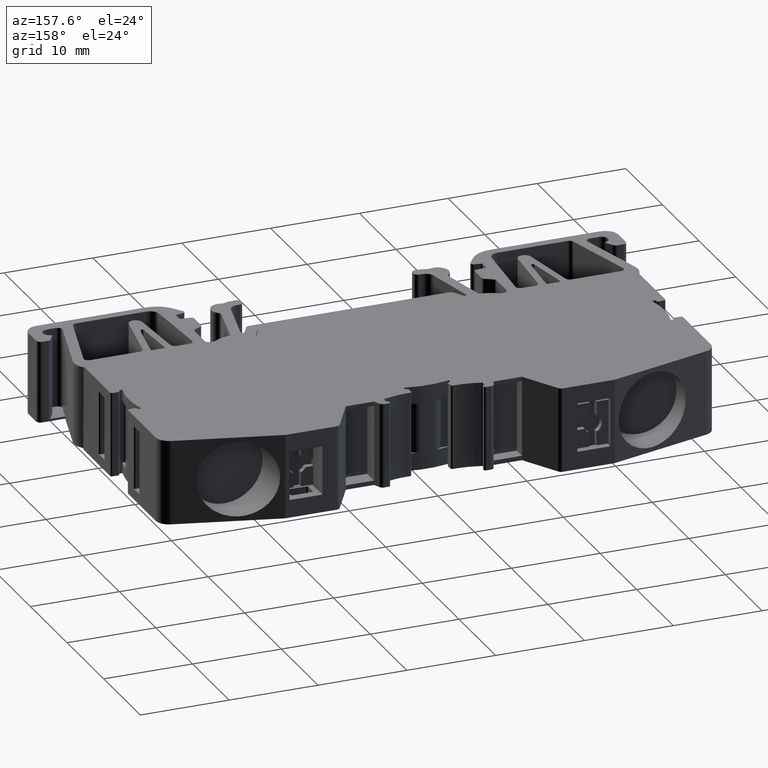
[diagram: clean part render]
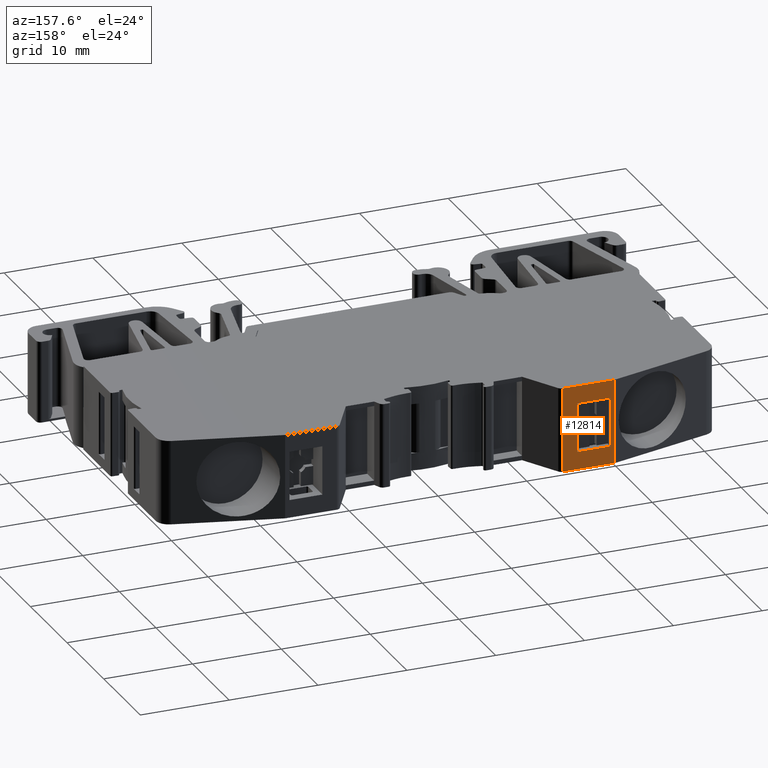
[diagram: same view with one face highlighted and labeled with its STEP entity id]
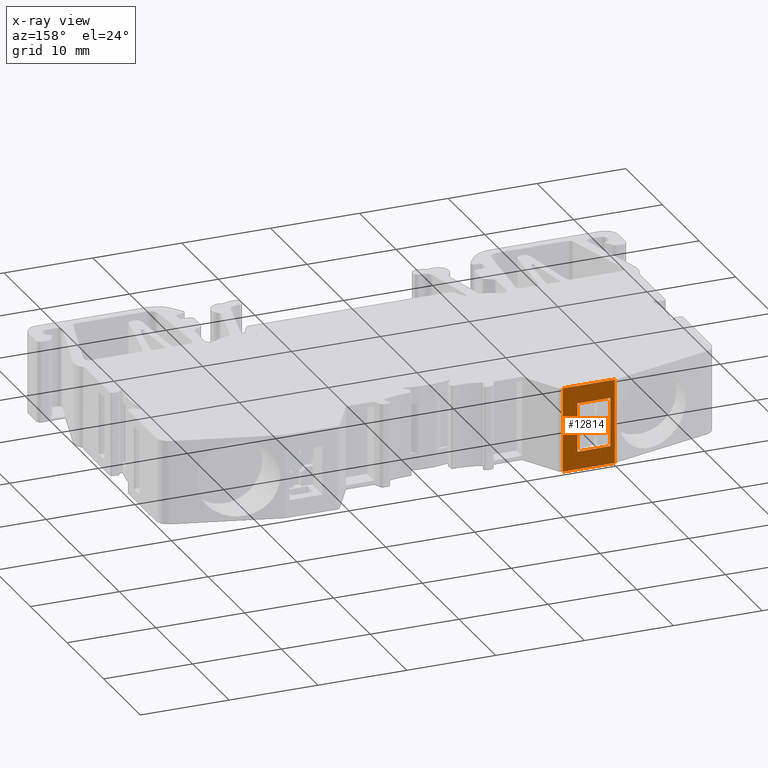
[diagram: x-ray of the same camera — body ghosted, the highlighted face saturated]
A machine part, auxiliary view. The second image highlights one B-rep face of the part: STEP entity #12814.
The next image is the same camera in x-ray: the body ghosted, the highlighted face saturated — about 0% of this face is hidden behind the body in this view.
In plain terms, the highlighted planar face has unit normal (0, 1, -0).
Its self-contained STEP definition (entity closure, byte-faithful):
#579 = CARTESIAN_POINT ( 'NONE',  ( 166.5904565199155300, 31.61042765594739700, 3.979364252333159600 ) ) ;
#586 = FACE_OUTER_BOUND ( 'NONE', #9016, .T. ) ;
#587 = PLANE ( 'NONE',  #4681 ) ;
#589 = FACE_BOUND ( 'NONE', #8997, .T. ) ;
#593 = DIRECTION ( 'NONE',  ( -0.9999999999999181800, 4.045120140089865000E-007, 0.0000000000000000000 ) ) ;
#607 = DIRECTION ( 'NONE',  ( 4.045120140089865000E-007, 0.9999999999999181800, -0.0000000000000000000 ) ) ;
#2994 = EDGE_CURVE ( 'NONE', #8636, #8648, #7357, .T. ) ;
#3025 = EDGE_CURVE ( 'NONE', #8601, #8619, #6426, .T. ) ;
#3029 = EDGE_CURVE ( 'NONE', #8648, #8601, #6471, .T. ) ;
#3051 = EDGE_CURVE ( 'NONE', #8634, #8649, #6723, .T. ) ;
#3053 = EDGE_CURVE ( 'NONE', #8619, #8636, #6712, .T. ) ;
#3116 = EDGE_CURVE ( 'NONE', #8630, #8649, #6912, .T. ) ;
#3140 = EDGE_CURVE ( 'NONE', #8630, #8680, #6984, .T. ) ;
#3199 = EDGE_CURVE ( 'NONE', #8680, #8634, #5356, .T. ) ;
#4681 = AXIS2_PLACEMENT_3D ( 'NONE', #579, #607, #593 ) ;
#5356 = B_SPLINE_CURVE_WITH_KNOTS ( 'NONE', 3,
 ( #15820, #15777, #15778, #15790 ),
 .UNSPECIFIED., .F., .F.,
 ( 4, 4 ),
 ( 0.0000000000000000000, 1.000000000000000000 ),
 .UNSPECIFIED. ) ;
#6417 = CARTESIAN_POINT ( 'NONE',  ( 164.9715464654729800, 31.61042831081596600, 3.979364252333159600 ) ) ;
#6426 = LINE ( 'NONE', #6417, #13430 ) ;
#6461 = DIRECTION ( 'NONE',  ( 0.0000000000000000000, 0.0000000000000000000, 1.000000000000000000 ) ) ;
#6471 = LINE ( 'NONE', #6543, #13454 ) ;
#6543 = CARTESIAN_POINT ( 'NONE',  ( 166.5904565199155300, 31.61042765594739700, -23.80000000000001500 ) ) ;
#6576 = DIRECTION ( 'NONE',  ( 0.9999999999999181800, -4.045120140089865000E-007, -0.0000000000000000000 ) ) ;
#6703 = CARTESIAN_POINT ( 'NONE',  ( 166.5904565199155300, 31.61042765594739700, 3.979364252333159600 ) ) ;
#6712 = LINE ( 'NONE', #6734, #13395 ) ;
#6719 = DIRECTION ( 'NONE',  ( -0.9999999999999181800, 4.045120140089865000E-007, 0.0000000000000000000 ) ) ;
#6723 = LINE ( 'NONE', #6703, #13401 ) ;
#6734 = CARTESIAN_POINT ( 'NONE',  ( 166.5904565199155300, 31.61042765594739700, -18.30000000000000800 ) ) ;
#6735 = DIRECTION ( 'NONE',  ( -0.0000000000000000000, -0.0000000000000000000, -1.000000000000000000 ) ) ;
#6912 = LINE ( 'NONE', #6915, #13499 ) ;
#6915 = CARTESIAN_POINT ( 'NONE',  ( 213.8060058011269600, 31.61043000906164800, -25.80000000000000100 ) ) ;
#6977 = DIRECTION ( 'NONE',  ( 1.000000000000000000, -0.0000000000000000000, 0.0000000000000000000 ) ) ;
#6984 = LINE ( 'NONE', #6989, #13530 ) ;
#6989 = CARTESIAN_POINT ( 'NONE',  ( 160.7732887459804900, 31.61043000906164800, 3.979364252333159600 ) ) ;
#7018 = DIRECTION ( 'NONE',  ( 0.0000000000000000000, 0.0000000000000000000, 1.000000000000000000 ) ) ;
#7357 = LINE ( 'NONE', #7362, #13447 ) ;
#7362 = CARTESIAN_POINT ( 'NONE',  ( 161.2714800897409800, 31.61042980753726900, 3.979364252333159600 ) ) ;
#7367 = DIRECTION ( 'NONE',  ( -0.0000000000000000000, -0.0000000000000000000, -1.000000000000000000 ) ) ;
#8601 = VERTEX_POINT ( 'NONE', #18994 ) ;
#8619 = VERTEX_POINT ( 'NONE', #19006 ) ;
#8630 = VERTEX_POINT ( 'NONE', #18996 ) ;
#8634 = VERTEX_POINT ( 'NONE', #19040 ) ;
#8636 = VERTEX_POINT ( 'NONE', #19016 ) ;
#8648 = VERTEX_POINT ( 'NONE', #19050 ) ;
#8649 = VERTEX_POINT ( 'NONE', #18997 ) ;
#8680 = VERTEX_POINT ( 'NONE', #19068 ) ;
#8997 = EDGE_LOOP ( 'NONE', ( #15139, #15181, #15162, #15092 ) ) ;
#9016 = EDGE_LOOP ( 'NONE', ( #15131, #15160, #15111, #15193 ) ) ;
#12814 = ADVANCED_FACE ( 'NONE', ( #586, #589 ), #587, .T. ) ;
#13395 = VECTOR ( 'NONE', #6719, 1000.000000000000100 ) ;
#13401 = VECTOR ( 'NONE', #6735, 1000.000000000000000 ) ;
#13430 = VECTOR ( 'NONE', #6461, 1000.000000000000000 ) ;
#13447 = VECTOR ( 'NONE', #7367, 1000.000000000000000 ) ;
#13454 = VECTOR ( 'NONE', #6576, 1000.000000000000100 ) ;
#13499 = VECTOR ( 'NONE', #6977, 1000.000000000000000 ) ;
#13530 = VECTOR ( 'NONE', #7018, 1000.000000000000000 ) ;
#15092 = ORIENTED_EDGE ( 'NONE', *, *, #3025, .T. ) ;
#15111 = ORIENTED_EDGE ( 'NONE', *, *, #3051, .T. ) ;
#15131 = ORIENTED_EDGE ( 'NONE', *, *, #3140, .T. ) ;
#15139 = ORIENTED_EDGE ( 'NONE', *, *, #3053, .T. ) ;
#15160 = ORIENTED_EDGE ( 'NONE', *, *, #3199, .T. ) ;
#15162 = ORIENTED_EDGE ( 'NONE', *, *, #3029, .T. ) ;
#15181 = ORIENTED_EDGE ( 'NONE', *, *, #2994, .T. ) ;
#15193 = ORIENTED_EDGE ( 'NONE', *, *, #3116, .F. ) ;
#15777 = CARTESIAN_POINT ( 'NONE',  ( 162.7123446706255000, 31.61042922469023300, -16.30000000000000800 ) ) ;
#15778 = CARTESIAN_POINT ( 'NONE',  ( 164.6514005952705000, 31.61042844031881300, -16.30000000000000800 ) ) ;
#15790 = CARTESIAN_POINT ( 'NONE',  ( 166.5904565199155300, 31.61042765594739700, -16.30000000000000100 ) ) ;
#15820 = CARTESIAN_POINT ( 'NONE',  ( 160.7732843550065000, 31.61042883250452800, -16.30000000000000100 ) ) ;
#18994 = CARTESIAN_POINT ( 'NONE',  ( 164.9715464654730100, 31.61042831081599400, -23.80000000000000800 ) ) ;
#18996 = CARTESIAN_POINT ( 'NONE',  ( 160.7732887459805500, 31.61043000906165500, -25.80000000000000400 ) ) ;
#18997 = CARTESIAN_POINT ( 'NONE',  ( 166.5904565199155300, 31.61042765594742600, -25.80000000000000800 ) ) ;
#19006 = CARTESIAN_POINT ( 'NONE',  ( 164.9715464654729800, 31.61042868499630700, -18.30000000000000100 ) ) ;
#19016 = CARTESIAN_POINT ( 'NONE',  ( 161.2714800897407500, 31.61042980753725500, -18.30000000000000400 ) ) ;
#19040 = CARTESIAN_POINT ( 'NONE',  ( 166.5904565199155300, 31.61042765594739700, -16.30000000000000100 ) ) ;
#19050 = CARTESIAN_POINT ( 'NONE',  ( 161.2714800897406300, 31.61042905917663100, -23.80000000000000800 ) ) ;
#19068 = CARTESIAN_POINT ( 'NONE',  ( 160.7732843550065000, 31.61042883250452800, -16.30000000000000100 ) ) ;